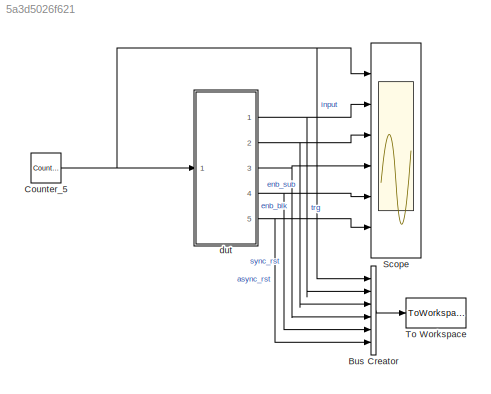
MODEL slx_5a3d5026f621
KIND model
CONFIG AbsTol = auto
CONFIG FixedStep = auto
CONFIG MaxStep = auto
CONFIG MinStep = auto
CONFIG RelTol = 1e-3
CONFIG SampleTimeConstraint = Unconstrained
CONFIG Solver = FixedStepDiscrete
CONFIG SolverMode = SingleTasking
CONFIG SolverName = FixedStepDiscrete
CONFIG StartTime = 0.0
CONFIG StopFcn = % my_logic
CONFIG StopTime = 20
BLOCK [BusCreator] Bus Creator
  DisplayOption = bar
  InheritFromInputs = on
  Inputs = 6
  Ports = [6, 1]
BLOCK [Reference] Counter_5  REF=simulink/Sources/Counter
Limited
  Ports = [0, 1]
  SourceBlock = simulink/Sources/Counter\nLimited
  SourceType = Counter Limited
BLOCK [Scope] Scope
  NumInputPorts = 6
  Ports = [6]
  ScopeSpecificationString = Simulink.scopes.TimeScopeBlockCfg('CurrentConfiguration', extmgr.ConfigurationSet(extmgr.Configuration('Core','General UI',true),extmgr.Configuration('Core','Source UI',true),extmgr.Configuration('Sources','WiredSimulink',true,'DataLoggingSaveFormat','StructureWithTime','DataLoggingLimitDataPoints',true,'DataLoggingDecimation','1','DataLoggingDecimateData',true),extmgr.Configuration('Visuals','Tim...<+6462ch>
BLOCK [ToWorkspace] To Workspace
  FixptAsFi = on
  MaxDataPoints = inf
  Ports = [1]
  SampleTime = -1
  SaveFormat = Timeseries
  VariableName = simout
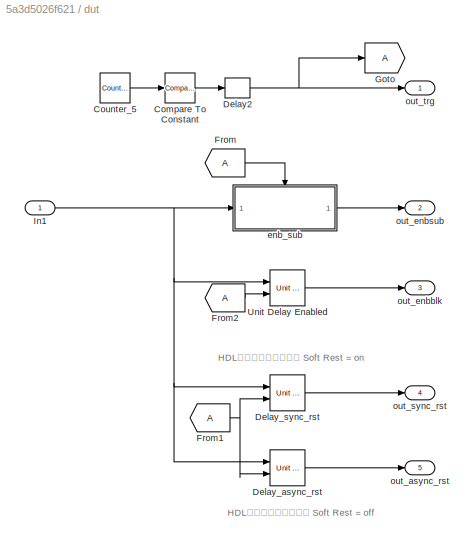
BLOCK [SubSystem] dut
  Ports = [1, 5]
  RequestExecContextInheritance = off
  Variant = off
BLOCK [Reference] dut/ Delay_async_rst  REF=simulink/Additional Math
& Discrete/Additional
Discrete/Unit Delay
Resettable
  Ports = [2, 1]
  SourceBlock = simulink/Additional Math\n& Discrete/Additional\nDiscrete/Unit Delay\nResettable
  SourceType = Unit Delay Resettable
BLOCK [Reference] dut/ Delay_sync_rst  REF=simulink/Additional Math
& Discrete/Additional
Discrete/Unit Delay
Resettable
  Ports = [2, 1]
  SourceBlock = simulink/Additional Math\n& Discrete/Additional\nDiscrete/Unit Delay\nResettable
  SourceType = Unit Delay Resettable
BLOCK [Reference] dut/Compare To Constant  REF=simulink/Logic and Bit
Operations/Compare
To Constant
  Ports = [1, 1]
  SourceBlock = simulink/Logic and Bit\nOperations/Compare\nTo Constant
  SourceType = Compare To Constant
BLOCK [Reference] dut/Counter_5  REF=simulink/Sources/Counter
Limited
  Ports = [0, 1]
  SourceBlock = simulink/Sources/Counter\nLimited
  SourceType = Counter Limited
BLOCK [Delay] dut/Delay2
  DelayLength = 1
  InputPortMap = u0
  InputProcessing = Inherited
  Ports = [1, 1]
  UserDataPersistent = on
BLOCK [From] dut/From
BLOCK [From] dut/From1
BLOCK [From] dut/From2
BLOCK [Goto] dut/Goto
BLOCK [Inport] dut/In1
  IconDisplay = Port number
BLOCK [Reference] dut/Unit Delay Enabled  REF=simulink/Additional Math
& Discrete/Additional
Discrete/Unit Delay
Enabled
  Ports = [2, 1]
  SourceBlock = simulink/Additional Math\n& Discrete/Additional\nDiscrete/Unit Delay\nEnabled
  SourceType = Unit Delay Enabled
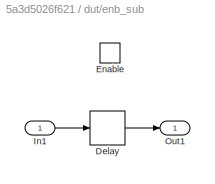
BLOCK [SubSystem] dut/enb_sub
  Ports = [1, 1, 1]
  RequestExecContextInheritance = off
  TreatAsAtomicUnit = on
  Variant = off
BLOCK [Delay] dut/enb_sub/Delay
  DelayLength = 1
  InputPortMap = u0
  Ports = [1, 1]
BLOCK [EnablePort] dut/enb_sub/Enable
  Ports = []
BLOCK [Inport] dut/enb_sub/In1
  IconDisplay = Port number
BLOCK [Outport] dut/enb_sub/Out1
  IconDisplay = Port number
  InitialOutput = 0
BLOCK [Outport] dut/out_async_rst
  IconDisplay = Port number
  Port = 5
BLOCK [Outport] dut/out_enbblk
  IconDisplay = Port number
  Port = 3
BLOCK [Outport] dut/out_enbsub
  IconDisplay = Port number
  Port = 2
BLOCK [Outport] dut/out_sync_rst
  IconDisplay = Port number
  Port = 4
BLOCK [Outport] dut/out_trg
  IconDisplay = Port number
ANNOTATION dut: HDLブロックプロパティ Soft Rest = off
ANNOTATION dut: HDLブロックプロパティ Soft Rest = on
LINE Bus Creator:1 -> To Workspace:1
NET Counter_5:1 -> Bus Creator:1, Scope:1, dut:1
LINE dut/ Delay_async_rst:1 -> dut/out_async_rst:1
LINE dut/ Delay_sync_rst:1 -> dut/out_sync_rst:1
LINE dut/Compare To Constant:1 -> dut/Delay2:1
LINE dut/Counter_5:1 -> dut/Compare To Constant:1
NET dut/Delay2:1 -> dut/Goto:1, dut/out_trg:1
NET dut/From1:1 -> dut/ Delay_async_rst:2, dut/ Delay_sync_rst:2
LINE dut/From2:1 -> dut/Unit Delay Enabled:2
LINE dut/From:1 -> dut/enb_sub:enable
NET dut/In1:1 -> dut/ Delay_async_rst:1, dut/ Delay_sync_rst:1, dut/Unit Delay Enabled:1, dut/enb_sub:1
LINE dut/Unit Delay Enabled:1 -> dut/out_enbblk:1
LINE dut/enb_sub/Delay:1 -> dut/enb_sub/Out1:1
LINE dut/enb_sub/In1:1 -> dut/enb_sub/Delay:1
LINE dut/enb_sub:1 -> dut/out_enbsub:1
NET dut:1 -> Bus Creator:2, Scope:2
NET dut:2 -> Bus Creator:3, Scope:3
NET dut:3 -> Bus Creator:4, Scope:4
NET dut:4 -> Bus Creator:5, Scope:5
NET dut:5 -> Bus Creator:6, Scope:6
note: NET lines group one-source signal fan-out (src -> all destinations, sorted); 1:1 wires keep LINE
